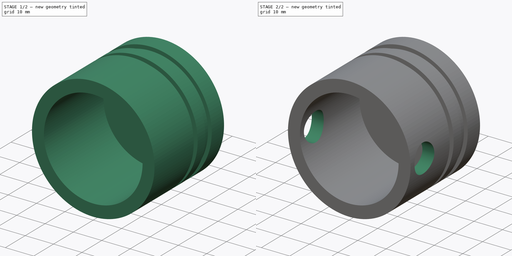
[diagram: build sequence overview — one tinted view per stage of 2, left to right]
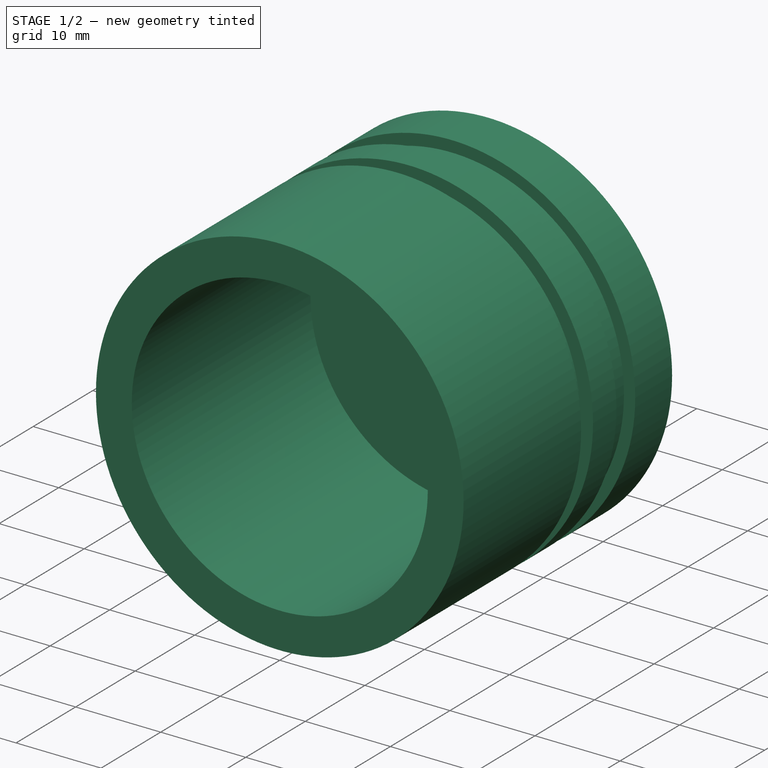
[diagram: stage 1 of 2 — iso view after this stage's code; geometry added in this stage tinted green]
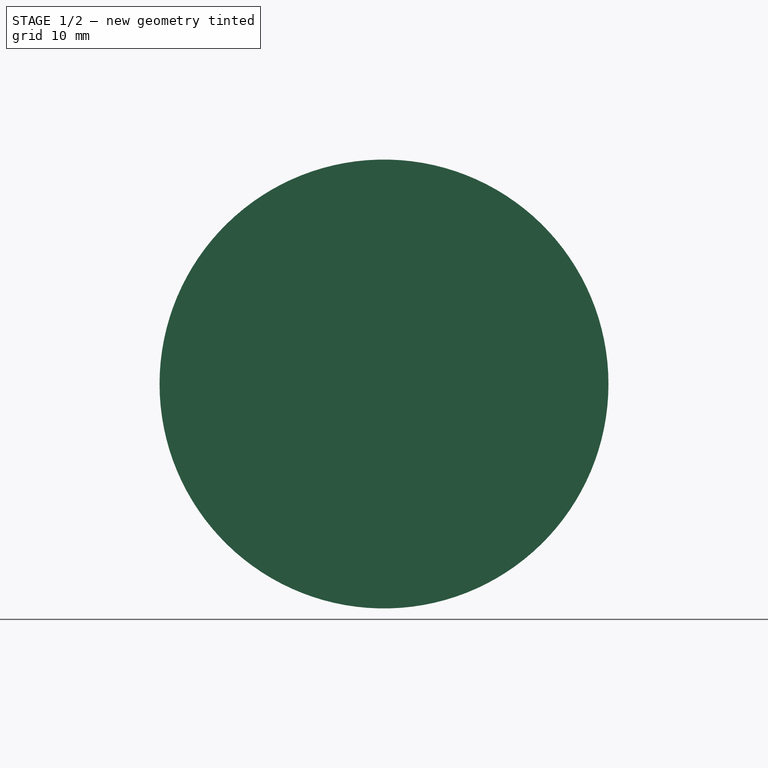
[diagram: stage 1 of 2 — front view after this stage's code; geometry added in this stage tinted green]
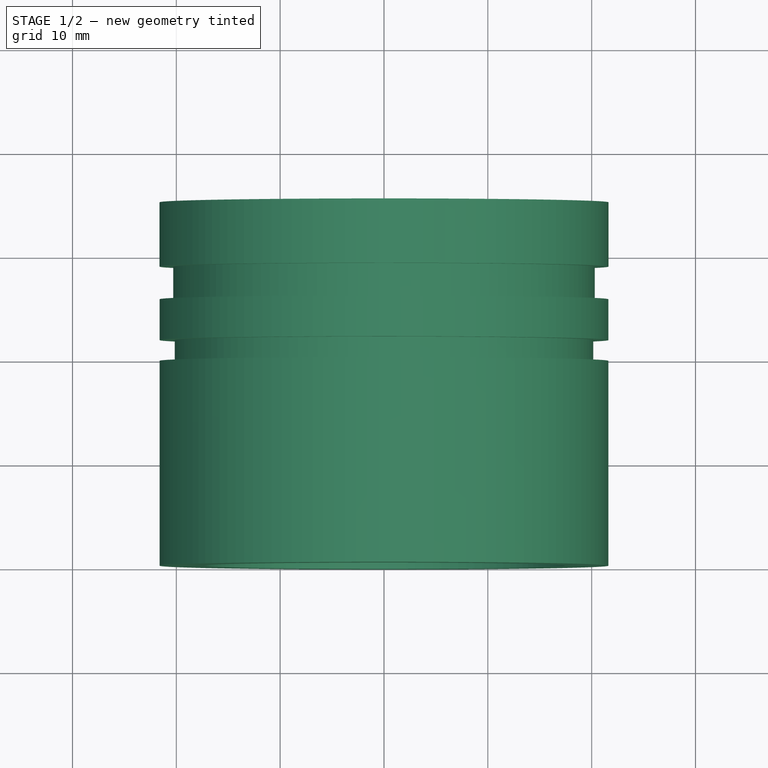
[diagram: stage 1 of 2 — top view after this stage's code; geometry added in this stage tinted green]
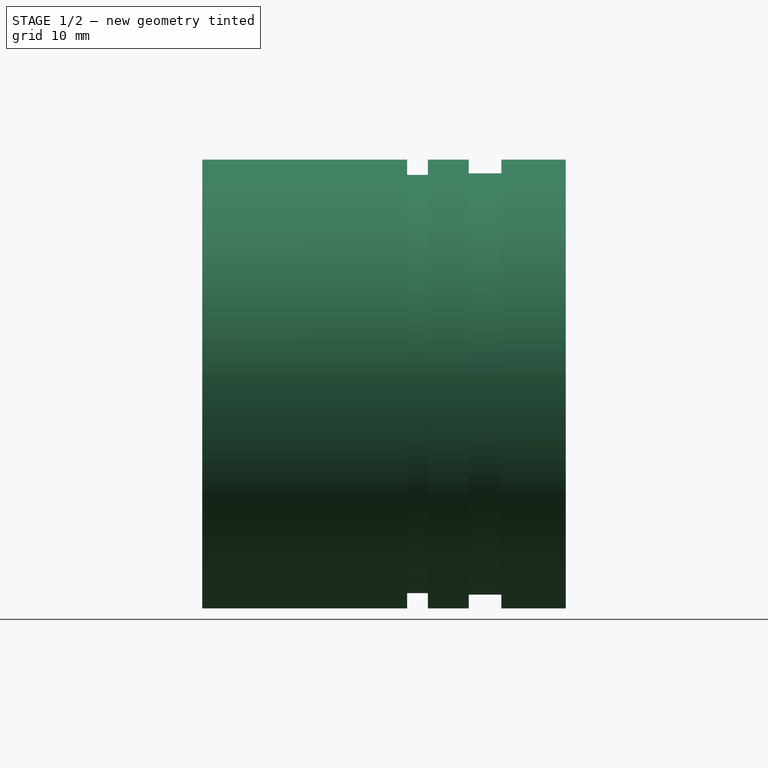
[diagram: stage 1 of 2 — right view after this stage's code; geometry added in this stage tinted green]
FCSTD DOCUMENT  (FreeCAD 1.0R39319 (Git))
Label: pistion
License: All rights reserved
LicenseURL: https://en.wikipedia.org/wiki/All_rights_reserved
objects: Sketcher::SketchObject×3, PartDesign::Body×2, PartDesign::Revolution×1, PartDesign::Pocket×1
note: 14 computed .brp shape members not serialized (recipe doc carries the construction recipe); baked Part::Feature solids carry a one-line shape summary decoded from their .brp

FEATURE [Sketcher::SketchObject] Sketch
  ArcFitTolerance = 1e-06
  AttachmentSupport = -> [XY_Plane]
  FullyConstrained = false
  MakeInternals = false
  MapMode = 5
  sketch-geometry (14):
    g0: LineSegment StartX=0 StartY=35 StartZ=0 EndX=-21.6158 EndY=35 EndZ=0
    g1: LineSegment StartX=-21.6119 StartY=21.7288 StartZ=0 EndX=-20.1482 EndY=21.7288 EndZ=0
    g2: LineSegment StartX=-20.1482 StartY=21.7288 StartZ=0 EndX=-20.1482 EndY=19.7288 EndZ=0
    g3: LineSegment StartX=-20.1482 StartY=19.7288 StartZ=0 EndX=-21.6119 EndY=19.7288 EndZ=0
    g4: LineSegment StartX=-21.6119 StartY=19.7288 StartZ=0 EndX=-21.6119 EndY=0 EndZ=0
    g5: LineSegment StartX=-21.6119 StartY=0 StartZ=0 EndX=-17.3992 EndY=0 EndZ=0
    g6: LineSegment StartX=-17.3992 StartY=0 StartZ=0 EndX=-17.3992 EndY=30 EndZ=0
    g7: LineSegment StartX=-17.3992 StartY=30 StartZ=0 EndX=0 EndY=30 EndZ=0
    g8: LineSegment StartX=0 StartY=30 StartZ=0 EndX=0 EndY=35 EndZ=0
    g9: LineSegment StartX=-21.6119 StartY=21.7288 StartZ=0 EndX=-21.6119 EndY=25.661 EndZ=0
    g10: LineSegment StartX=-21.6119 StartY=25.661 StartZ=0 EndX=-20.2939 EndY=25.661 EndZ=0
    g11: LineSegment StartX=-20.2939 StartY=25.661 StartZ=0 EndX=-20.2939 EndY=28.8068 EndZ=0
    g12: LineSegment StartX=-20.2939 StartY=28.8068 StartZ=0 EndX=-21.6158 EndY=28.8068 EndZ=0
    g13: LineSegment StartX=-21.6158 StartY=28.8068 StartZ=0 EndX=-21.6158 EndY=35 EndZ=0
  constraints (34):
    c: PointOnObject(g0,g-2)
    c: Horizontal(g0)
    c: Horizontal(g1)
    c: Coincident(g1,g2)
    c: Vertical(g2)
    c: Coincident(g2,g3)
    c: Horizontal(g3)
    c: Coincident(g3,g4)
    c: PointOnObject(g4,g-1)
    c: Vertical(g4)
    c: Coincident(g4,g5)
    c: PointOnObject(g5,g-1)
    c: Coincident(g5,g6)
    c: Vertical(g6)
    c: Coincident(g6,g7)
    c: PointOnObject(g7,g-2)
    c: Horizontal(g7)
    c: Coincident(g7,g8)
    c: Coincident(g8,g0)
    c: DistanceY(g2,g2) = 2
    c: DistanceY(g8,g8) = 5
    c: Distance(g-1,g7) = 30
    c: Equal(g1,g3)
    c: Coincident(g1,g9)
    c: Vertical(g9)
    c: Coincident(g9,g10)
    c: Horizontal(g10)
    c: Coincident(g10,g11)
    c: Vertical(g11)
    c: Coincident(g11,g12)
    c: Horizontal(g12)
    c: Coincident(g12,g13)
    c: Coincident(g13,g0)
    c: Vertical(g13)
FEATURE [PartDesign::Revolution] Revolution
  Angle = 360
  Angle2 = 60
  Axis = (0,1,0)
  Base = (0,0,0)
  Midplane = true
  Profile = -> Sketch
  ReferenceAxis = -> Sketch [V_Axis]
  Refine = true
  Suppressed = false
  Type = 0
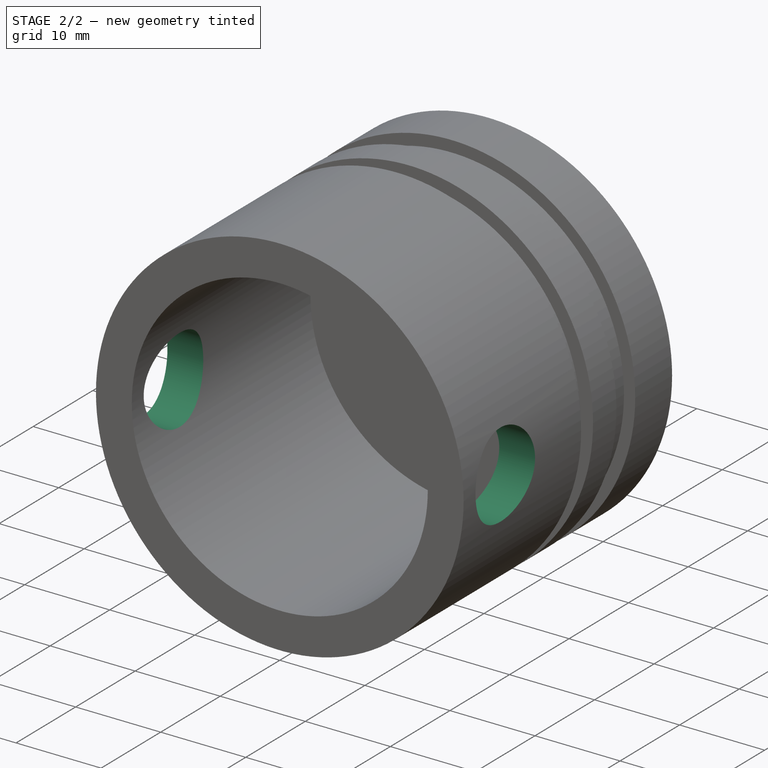
[diagram: stage 2 of 2 — iso view after this stage's code; geometry added in this stage tinted green]
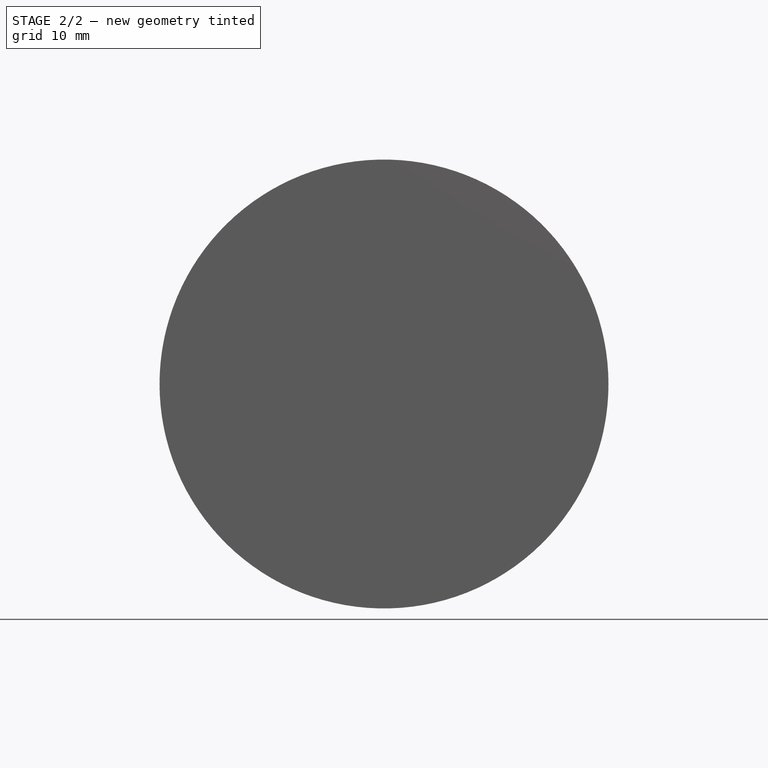
[diagram: stage 2 of 2 — front view after this stage's code; geometry added in this stage tinted green]
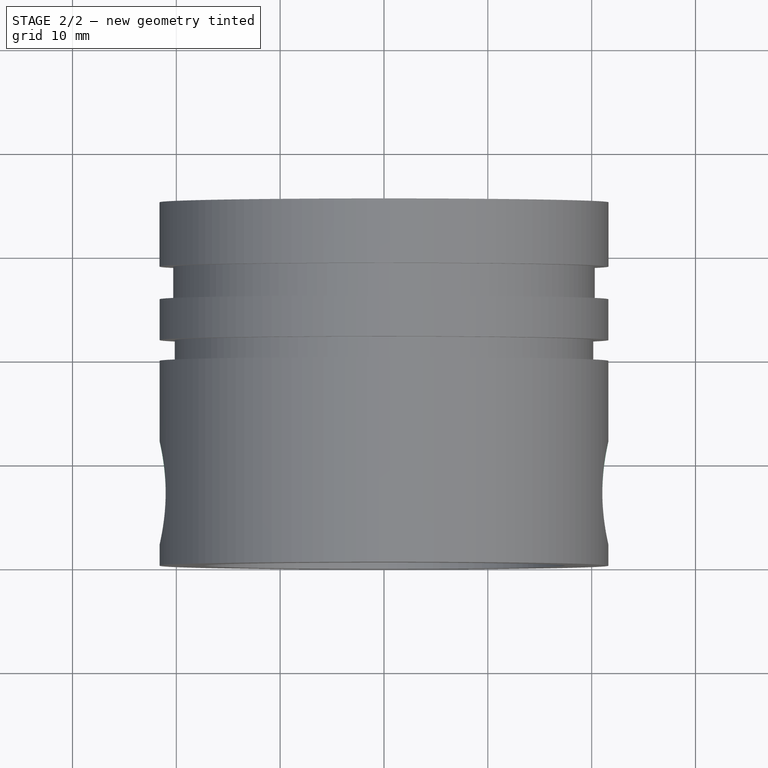
[diagram: stage 2 of 2 — top view after this stage's code; geometry added in this stage tinted green]
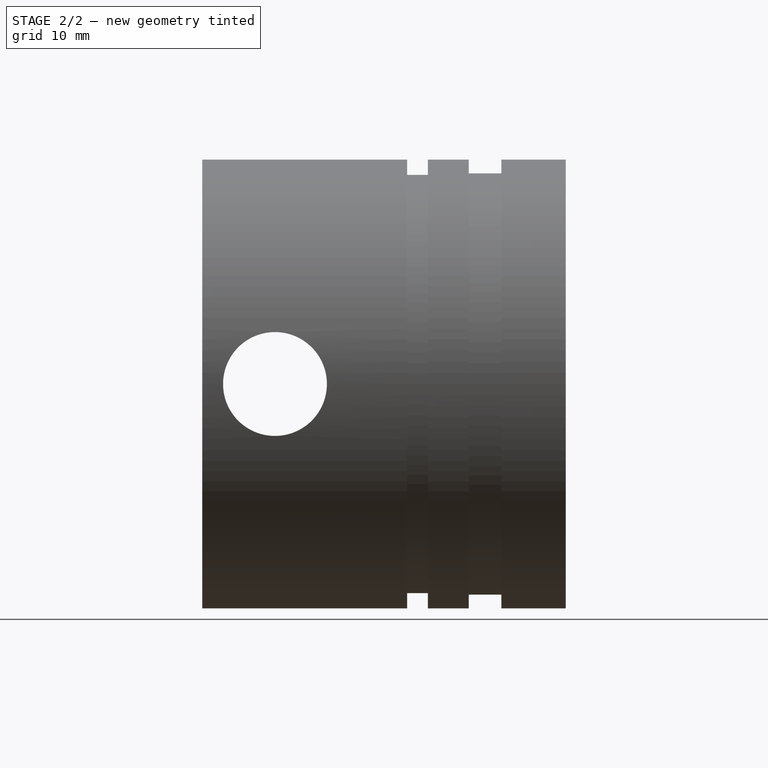
[diagram: stage 2 of 2 — right view after this stage's code; geometry added in this stage tinted green]
FEATURE [Sketcher::SketchObject] Sketch001
  ArcFitTolerance = 1e-06
  AttachmentSupport = -> [YZ_Plane]
  FullyConstrained = true
  MakeInternals = false
  MapMode = 5
  Placement = pos=(0,0,0) rot=(0.57735,0.57735,0.57735;2.0944rad)
  sketch-geometry (1):
    g0: Circle CenterX=7 CenterY=0 CenterZ=0 NormalX=0 NormalY=0 NormalZ=1 AngleXU=0 Radius=5
  constraints (3):
    c: Diameter(g0) = 10
    c: PointOnObject(g0,g-1)
    c: DistanceX(g-1,g0) = 7
FEATURE [PartDesign::Pocket] Pocket
  BaseFeature = -> Revolution
  Direction = (-1,0,0)
  Length = 5
  Length2 = 5
  Midplane = true
  Profile = -> Sketch001
  ReferenceAxis = -> Sketch001 [N_Axis]
  Refine = true
  Suppressed = false
  Type = 1
FEATURE [PartDesign::Body] Body  label="pistion"
  AllowCompound = false
  Group = -> [Sketch,Revolution,Sketch001,Pocket]
  Origin = -> Origin
  Tip = -> Pocket
FEATURE [Sketcher::SketchObject] Sketch002
  ArcFitTolerance = 1e-06
  AttachmentSupport = -> [YZ_Plane001]
  FullyConstrained = true
  MakeInternals = false
  MapMode = 5
  Placement = pos=(0,0,0) rot=(0.57735,0.57735,0.57735;2.0944rad)
FEATURE [PartDesign::Body] Body001  label="conRod"
  AllowCompound = false
  Group = -> [Sketch002]
  Origin = -> Origin001
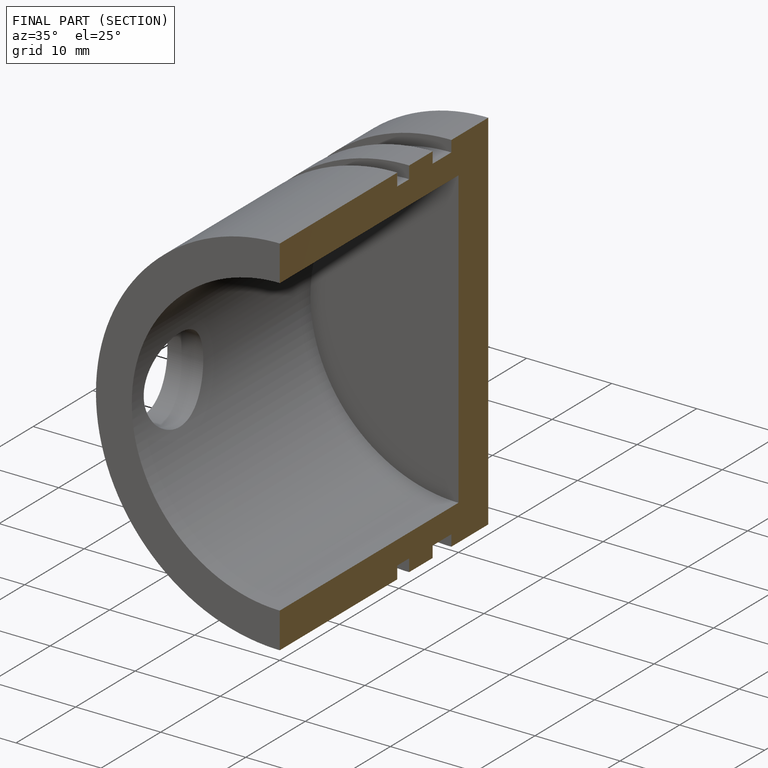
[diagram: finished part — half-section view (interior)]
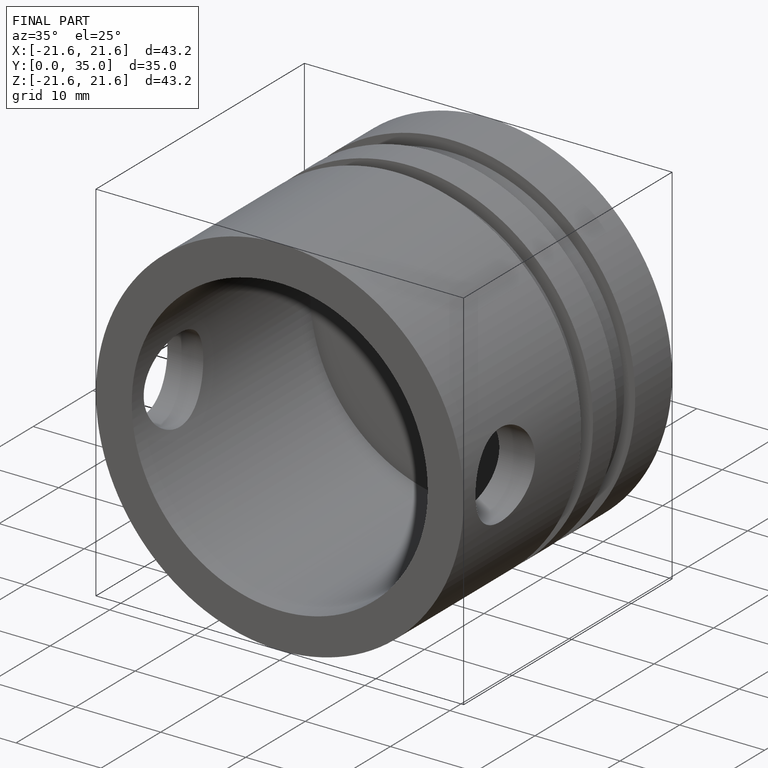
[diagram: finished part — iso view with bounding-box wireframe]
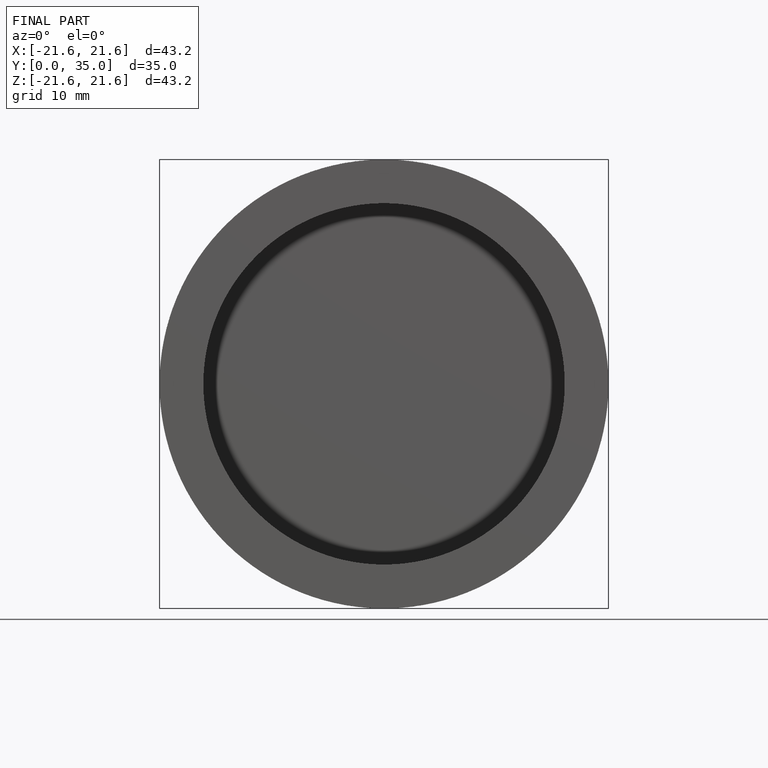
[diagram: finished part — front view with bounding-box wireframe]
